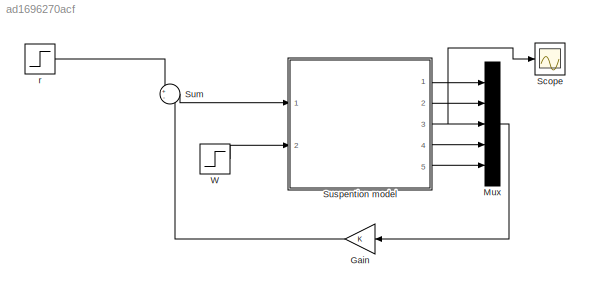
MODEL slx_ad1696270acf
KIND model
CONFIG AbsTol = auto
CONFIG EnableMultiTasking = off
CONFIG FixedStep = auto
CONFIG MaxStep = auto
CONFIG MinStep = auto
CONFIG RelTol = 1e-3
CONFIG SampleTimeConstraint = Unconstrained
CONFIG Solver = VariableStepAuto
CONFIG SolverName = VariableStepAuto
CONFIG StartTime = 0.0
CONFIG StopTime = 2
BLOCK [Gain] Gain
  Gain = K
  Multiplication = Matrix(K*u)
  OutDataTypeStr = Inherit: Inherit via internal rule
  ParamDataTypeStr = Inherit: Inherit via internal rule
  SaturateOnIntegerOverflow = off
BLOCK [Mux] Mux
  DisplayOption = bar
  Inputs = 5
  Ports = [5, 1]
BLOCK [Scope] Scope
  Floating = off
  NumInputPorts = 1
  Ports = [1]
  ScopeSpecificationString = Simulink.scopes.TimeScopeBlockCfg('CurrentConfiguration', extmgr.ConfigurationSet(extmgr.Configuration('Core','General UI',true),extmgr.Configuration('Core','Source UI',true),extmgr.Configuration('Sources','WiredSimulink',true),extmgr.Configuration('Visuals','Time Domain',true,'SerializedDisplays',{struct('MinYLimReal','-0.00299','MaxYLimReal','0.00526','YLabelReal','','MinYLimMag','0.00000','MaxY...<+1368ch>
BLOCK [Sum] Sum
  IconShape = round
  InputSameDT = off
  Inputs = +-
  OutDataTypeStr = Inherit: Inherit via internal rule
  Ports = [2, 1]
  SaturateOnIntegerOverflow = off
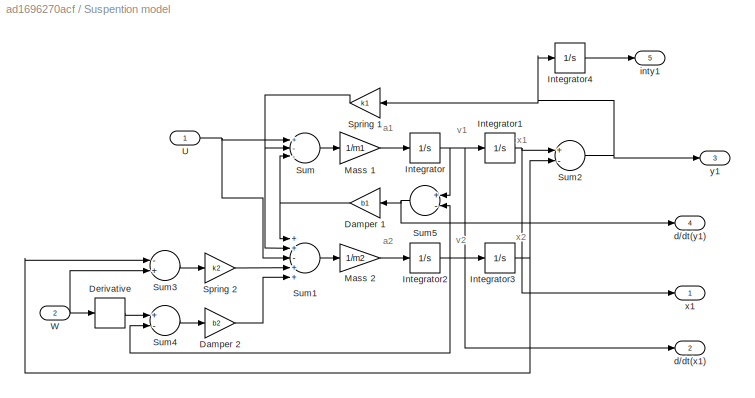
BLOCK [SubSystem] Suspention model
  Ports = [2, 5]
  RequestExecContextInheritance = off
BLOCK [Gain] Suspention model/Damper 1
  Gain = b1
BLOCK [Gain] Suspention model/Damper 2
  Gain = b2
BLOCK [Derivative] Suspention model/Derivative
BLOCK [Integrator] Suspention model/Integrator
  Ports = [1, 1]
BLOCK [Integrator] Suspention model/Integrator1
  Ports = [1, 1]
BLOCK [Integrator] Suspention model/Integrator2
  Ports = [1, 1]
BLOCK [Integrator] Suspention model/Integrator3
  Ports = [1, 1]
BLOCK [Integrator] Suspention model/Integrator4
  Ports = [1, 1]
BLOCK [Gain] Suspention model/Mass 1
  Gain = 1/m1
BLOCK [Gain] Suspention model/Mass 2
  Gain = 1/m2
BLOCK [Gain] Suspention model/Spring 1
  Gain = k1
BLOCK [Gain] Suspention model/Spring 2
  Gain = k2
BLOCK [Sum] Suspention model/Sum
  Inputs = +--
  Ports = [3, 1]
BLOCK [Sum] Suspention model/Sum1
  Inputs = ++-++
  Ports = [5, 1]
BLOCK [Sum] Suspention model/Sum2
  Inputs = +-
  Ports = [2, 1]
BLOCK [Sum] Suspention model/Sum3
  Inputs = -+
  Ports = [2, 1]
BLOCK [Sum] Suspention model/Sum4
  Inputs = +-
  Ports = [2, 1]
BLOCK [Sum] Suspention model/Sum5
  Inputs = +-
  Ports = [2, 1]
BLOCK [Inport] Suspention model/U
  IconDisplay = Port number
BLOCK [Inport] Suspention model/W
  IconDisplay = Port number
  Port = 2
BLOCK [Outport] Suspention model/d//dt(x1)
  IconDisplay = Port number
  Port = 2
BLOCK [Outport] Suspention model/d//dt(y1)
  IconDisplay = Port number
  Port = 4
BLOCK [Outport] Suspention model/inty1
  IconDisplay = Port number
  Port = 5
BLOCK [Outport] Suspention model/x1
  IconDisplay = Port number
BLOCK [Outport] Suspention model/y1
  IconDisplay = Port number
  Port = 3
BLOCK [Step] W
  After = -0.1
  SampleTime = 0
  Time = 0
BLOCK [Step] r
  After = 0
  SampleTime = 0
  Time = 0
ANNOTATION Suspention model: a1
ANNOTATION Suspention model: a2
ANNOTATION Suspention model: v1
ANNOTATION Suspention model: v2
ANNOTATION Suspention model: x1
ANNOTATION Suspention model: x2
LINE Gain:1 -> Sum:2
LINE Mux:1 -> Gain:1
LINE Sum:1 -> Suspention model:1
NET Suspention model/Damper 1:1 -> Suspention model/Sum1:1, Suspention model/Sum:3
LINE Suspention model/Damper 2:1 -> Suspention model/Sum1:5
LINE Suspention model/Derivative:1 -> Suspention model/Sum4:1
NET Suspention model/Integrator1:1 -> Suspention model/Sum2:1, Suspention model/x1:1
NET Suspention model/Integrator2:1 -> Suspention model/Integrator3:1, Suspention model/Sum4:2, Suspention model/Sum5:2
NET Suspention model/Integrator3:1 -> Suspention model/Sum2:2, Suspention model/Sum3:1
LINE Suspention model/Integrator4:1 -> Suspention model/inty1:1
NET Suspention model/Integrator:1 -> Suspention model/Integrator1:1, Suspention model/Sum5:1, Suspention model/d//dt(x1):1
LINE Suspention model/Mass 1:1 -> Suspention model/Integrator:1
LINE Suspention model/Mass 2:1 -> Suspention model/Integrator2:1
NET Suspention model/Spring 1:1 -> Suspention model/Sum1:2, Suspention model/Sum:2
LINE Suspention model/Spring 2:1 -> Suspention model/Sum1:4
LINE Suspention model/Sum1:1 -> Suspention model/Mass 2:1
NET Suspention model/Sum2:1 -> Suspention model/Integrator4:1, Suspention model/Spring 1:1, Suspention model/y1:1
LINE Suspention model/Sum3:1 -> Suspention model/Spring 2:1
LINE Suspention model/Sum4:1 -> Suspention model/Damper 2:1
NET Suspention model/Sum5:1 -> Suspention model/Damper 1:1, Suspention model/d//dt(y1):1
LINE Suspention model/Sum:1 -> Suspention model/Mass 1:1
NET Suspention model/U:1 -> Suspention model/Sum1:3, Suspention model/Sum:1
NET Suspention model/W:1 -> Suspention model/Derivative:1, Suspention model/Sum3:2
LINE Suspention model:1 -> Mux:1
LINE Suspention model:2 -> Mux:2
NET Suspention model:3 -> Mux:3, Scope:1
LINE Suspention model:4 -> Mux:4
LINE Suspention model:5 -> Mux:5
LINE W:1 -> Suspention model:2
LINE r:1 -> Sum:1
note: NET lines group one-source signal fan-out (src -> all destinations, sorted); 1:1 wires keep LINE
